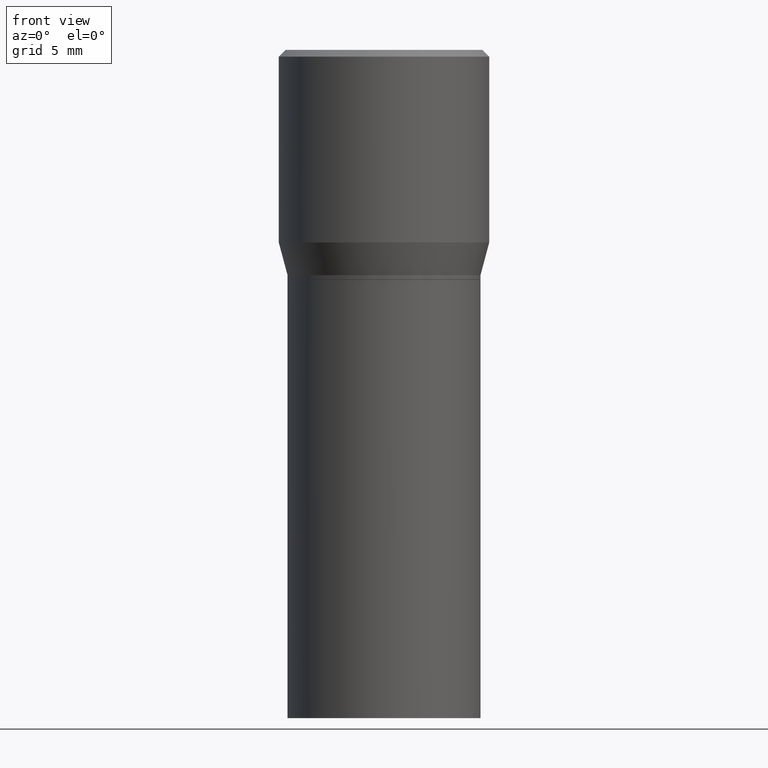
[diagram: clean part render]
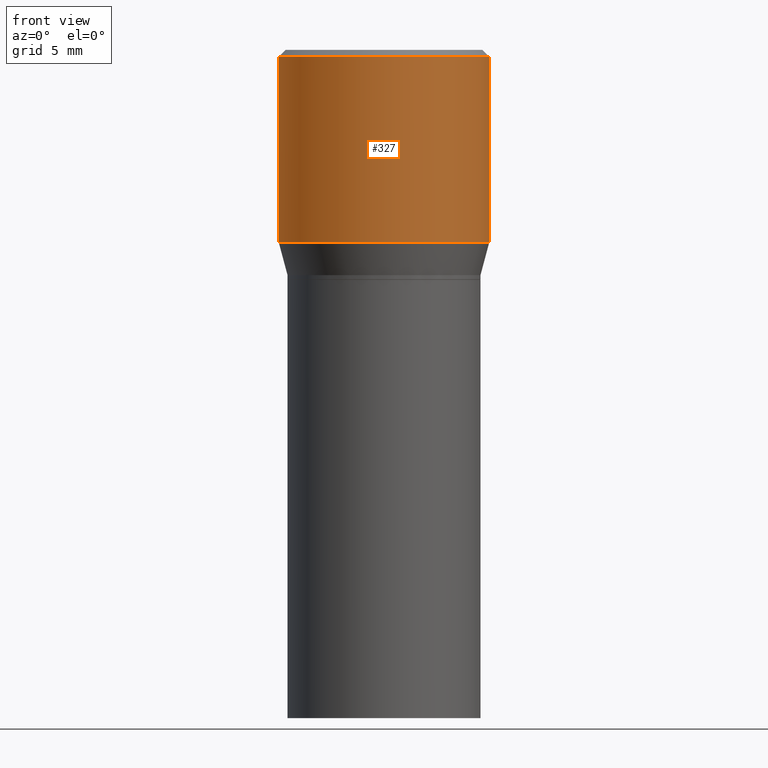
[diagram: same view with one face highlighted and labeled with its STEP entity id]
A machine part, front view. The second image highlights one B-rep face of the part: STEP entity #327.
In plain terms, the highlighted cylindrical surface (partial cylindrical patch) has radius 5.9995 mm, axis along (-0, 0, 1).
Its self-contained STEP definition (entity closure, byte-faithful):
#12 = VERTEX_POINT ( 'NONE', #344 ) ;
#13 = ORIENTED_EDGE ( 'NONE', *, *, #19, .F. ) ;
#19 = EDGE_CURVE ( 'NONE', #221, #440, #430, .T. ) ;
#64 = DIRECTION ( 'NONE',  ( -2.445468806185136597E-29, 3.491481338843145583E-15, 1.000000000000000000 ) ) ;
#117 = DIRECTION ( 'NONE',  ( 1.000000000000000000, -6.982962677686266711E-15, 0.000000000000000000 ) ) ;
#143 = CARTESIAN_POINT ( 'NONE',  ( 1.057335613469222465E-29, -1.509595033060740104E-15, -0.4323652016312719559 ) ) ;
#170 = DIRECTION ( 'NONE',  ( -2.445468806185136877E-29, 3.491481338843145188E-15, 1.000000000000000000 ) ) ;
#180 = CYLINDRICAL_SURFACE ( 'NONE', #266, 0.2361999999999999933 ) ;
#199 = AXIS2_PLACEMENT_3D ( 'NONE', #143, #214, #117 ) ;
#214 = DIRECTION ( 'NONE',  ( -2.445468806185136597E-29, 3.491481338843145583E-15, 1.000000000000000000 ) ) ;
#221 = VERTEX_POINT ( 'NONE', #247 ) ;
#224 = ORIENTED_EDGE ( 'NONE', *, *, #445, .F. ) ;
#229 = VECTOR ( 'NONE', #319, 39.37007874015748143 ) ;
#232 = EDGE_LOOP ( 'NONE', ( #13, #373, #250, #224 ) ) ;
#237 = CIRCLE ( 'NONE', #411, 0.2361999999999999933 ) ;
#247 = CARTESIAN_POINT ( 'NONE',  ( -0.2361999999999999933, 1.687069088046165861E-16, -0.4323652016312719559 ) ) ;
#250 = ORIENTED_EDGE ( 'NONE', *, *, #429, .T. ) ;
#262 = DIRECTION ( 'NONE',  ( -2.445468806185136597E-29, 3.491481338843145583E-15, 1.000000000000000000 ) ) ;
#266 = AXIS2_PLACEMENT_3D ( 'NONE', #402, #64, #323 ) ;
#272 = CIRCLE ( 'NONE', #199, 0.2361999999999999933 ) ;
#277 = CARTESIAN_POINT ( 'NONE',  ( -0.2361999999999999933, 1.678301941865356591E-15, -1.161852468318208757E-29 ) ) ;
#282 = CARTESIAN_POINT ( 'NONE',  ( -0.2361999999999999933, 8.973183152936629998E-16, -0.01499999999999999944 ) ) ;
#283 = CARTESIAN_POINT ( 'NONE',  ( 0.2361999999999999933, -1.701748004552143407E-15, -0.01499999999999999944 ) ) ;
#319 = DIRECTION ( 'NONE',  ( -2.445468806185136877E-29, 3.491481338843145188E-15, 1.000000000000000000 ) ) ;
#323 = DIRECTION ( 'NONE',  ( 1.000000000000000000, -6.982962677686266711E-15, 4.876176775795936353E-29 ) ) ;
#327 = ADVANCED_FACE ( 'NONE', ( #360 ), #180, .T. ) ;
#340 = VERTEX_POINT ( 'NONE', #283 ) ;
#344 = CARTESIAN_POINT ( 'NONE',  ( 0.2361999999999999933, -3.158970817530236235E-15, -0.4323652016312719559 ) ) ;
#360 = FACE_OUTER_BOUND ( 'NONE', #232, .T. ) ;
#365 = CARTESIAN_POINT ( 'NONE',  ( 3.668203209277705088E-31, -5.237222008264718399E-17, -0.01499999999999999944 ) ) ;
#373 = ORIENTED_EDGE ( 'NONE', *, *, #420, .T. ) ;
#384 = VECTOR ( 'NONE', #170, 39.37007874015748143 ) ;
#401 = CARTESIAN_POINT ( 'NONE',  ( 0.2361999999999999933, -1.649375784469496131E-15, 1.151752954443000088E-29 ) ) ;
#402 = CARTESIAN_POINT ( 'NONE',  ( 0.000000000000000000, 0.000000000000000000, 0.000000000000000000 ) ) ;
#406 = DIRECTION ( 'NONE',  ( 1.000000000000000000, -6.982962677686266711E-15, 0.000000000000000000 ) ) ;
#411 = AXIS2_PLACEMENT_3D ( 'NONE', #365, #262, #406 ) ;
#420 = EDGE_CURVE ( 'NONE', #221, #12, #272, .T. ) ;
#429 = EDGE_CURVE ( 'NONE', #12, #340, #435, .T. ) ;
#430 = LINE ( 'NONE', #277, #384 ) ;
#435 = LINE ( 'NONE', #401, #229 ) ;
#440 = VERTEX_POINT ( 'NONE', #282 ) ;
#445 = EDGE_CURVE ( 'NONE', #440, #340, #237, .T. ) ;